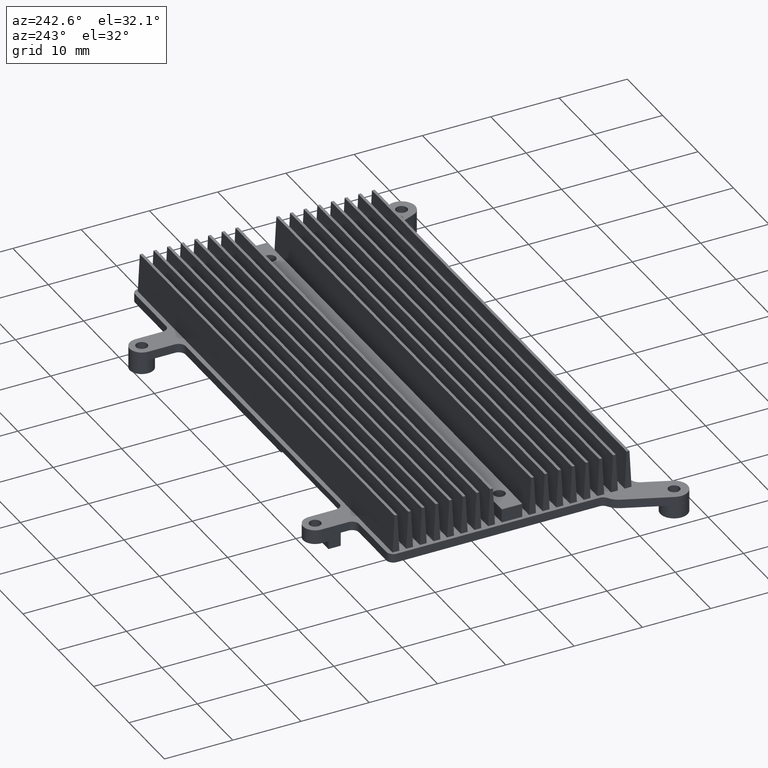
[diagram: clean part render]
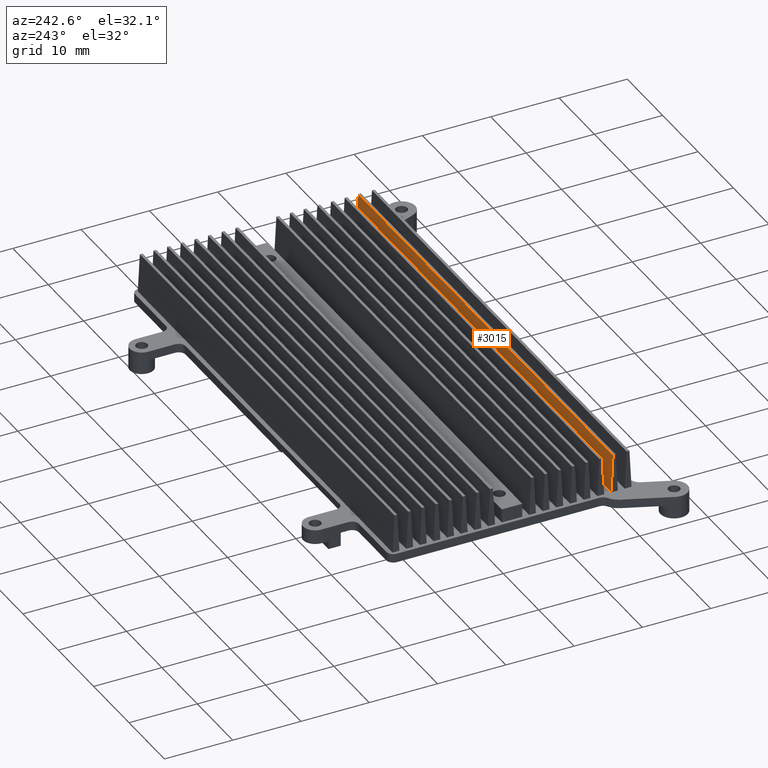
[diagram: same view with one face highlighted and labeled with its STEP entity id]
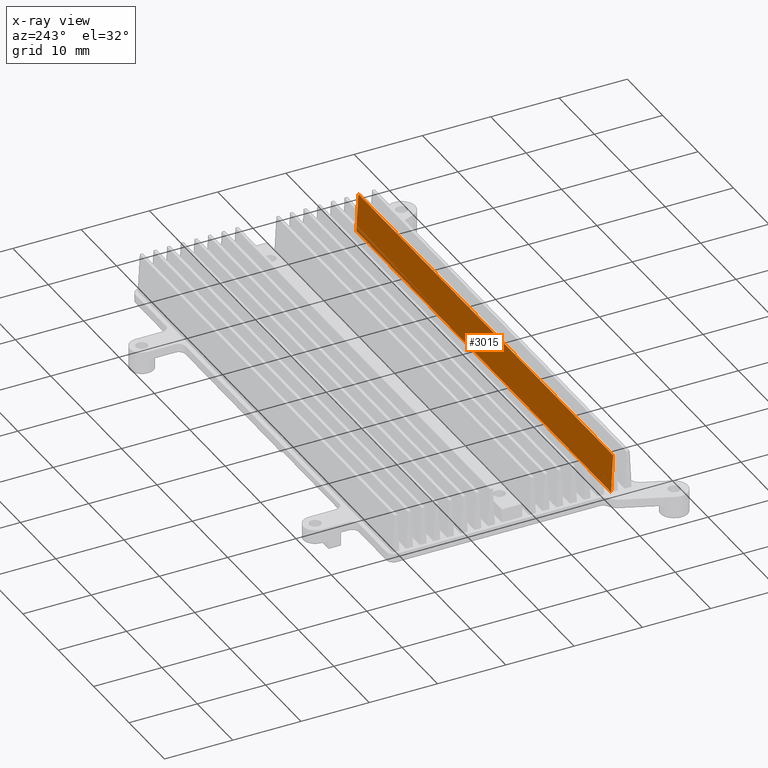
[diagram: x-ray of the same camera — body ghosted, the highlighted face saturated]
A machine part, auxiliary view. The second image highlights one B-rep face of the part: STEP entity #3015.
The next image is the same camera in x-ray: the body ghosted, the highlighted face saturated — about 4% of this face is hidden behind the body in this view.
In plain terms, the highlighted planar face has unit normal (0, -0.9986, -0.0535).
Its self-contained STEP definition (entity closure, byte-faithful):
#62 = EDGE_CURVE ( 'NONE', #501, #3656, #3113, .T. ) ;
#219 = CARTESIAN_POINT ( 'NONE',  ( 36.49940000000000140, -18.11228009753999757, -6.100000000000000533 ) ) ;
#356 = ORIENTED_EDGE ( 'NONE', *, *, #1851, .F. ) ;
#395 = CARTESIAN_POINT ( 'NONE',  ( 1.000599999999999934, -18.41228009753999828, -0.5000000000000000000 ) ) ;
#501 = VERTEX_POINT ( 'NONE', #902 ) ;
#644 = CARTESIAN_POINT ( 'NONE',  ( -35.49940000000000140, -18.11228009753999757, -6.100000000000000533 ) ) ;
#731 = VECTOR ( 'NONE', #4533, 1000.000000000000114 ) ;
#758 = VECTOR ( 'NONE', #4217, 1000.000000000000000 ) ;
#782 = DIRECTION ( 'NONE',  ( 0.0000000000000000000, -0.9985681322700890039, -0.05349472137160940499 ) ) ;
#881 = VECTOR ( 'NONE', #1355, 1000.000000000000000 ) ;
#902 = CARTESIAN_POINT ( 'NONE',  ( -35.49940000000000850, -18.11228009753999757, -6.100000000000000533 ) ) ;
#1030 = AXIS2_PLACEMENT_3D ( 'NONE', #3579, #782, #1150 ) ;
#1150 = DIRECTION ( 'NONE',  ( 0.0000000000000000000, 0.05349472137160939805, -0.9985681322700888929 ) ) ;
#1259 = FACE_OUTER_BOUND ( 'NONE', #2918, .T. ) ;
#1355 = DIRECTION ( 'NONE',  ( 1.000000000000000000, 0.0000000000000000000, 0.0000000000000000000 ) ) ;
#1440 = PLANE ( 'NONE',  #1030 ) ;
#1589 = CARTESIAN_POINT ( 'NONE',  ( 51.58500000000000085, -18.11228009753999757, -6.100000000000000533 ) ) ;
#1665 = VERTEX_POINT ( 'NONE', #3372 ) ;
#1695 = LINE ( 'NONE', #644, #731 ) ;
#1851 = EDGE_CURVE ( 'NONE', #3701, #1665, #3271, .T. ) ;
#1908 = VECTOR ( 'NONE', #4500, 1000.000000000000114 ) ;
#2025 = ORIENTED_EDGE ( 'NONE', *, *, #2877, .F. ) ;
#2545 = CARTESIAN_POINT ( 'NONE',  ( 36.49940000000000140, -18.11228009753999757, -6.100000000000000533 ) ) ;
#2877 = EDGE_CURVE ( 'NONE', #3656, #3701, #3938, .T. ) ;
#2918 = EDGE_LOOP ( 'NONE', ( #356, #2025, #2931, #4473 ) ) ;
#2931 = ORIENTED_EDGE ( 'NONE', *, *, #62, .F. ) ;
#3015 = ADVANCED_FACE ( 'NONE', ( #1259 ), #1440, .F. ) ;
#3113 = LINE ( 'NONE', #1589, #881 ) ;
#3271 = LINE ( 'NONE', #395, #758 ) ;
#3372 = CARTESIAN_POINT ( 'NONE',  ( -35.49940000000000140, -18.41228009753999828, -0.5000000000000000000 ) ) ;
#3505 = EDGE_CURVE ( 'NONE', #1665, #501, #1695, .T. ) ;
#3579 = CARTESIAN_POINT ( 'NONE',  ( 1.000599999999999934, -18.11228009753999757, -6.100000000000000533 ) ) ;
#3656 = VERTEX_POINT ( 'NONE', #2545 ) ;
#3701 = VERTEX_POINT ( 'NONE', #3928 ) ;
#3928 = CARTESIAN_POINT ( 'NONE',  ( 36.49940000000000140, -18.41228009753999828, -0.5000000000000000000 ) ) ;
#3938 = LINE ( 'NONE', #219, #1908 ) ;
#4217 = DIRECTION ( 'NONE',  ( -1.000000000000000000, 0.0000000000000000000, 0.0000000000000000000 ) ) ;
#4473 = ORIENTED_EDGE ( 'NONE', *, *, #3505, .F. ) ;
#4500 = DIRECTION ( 'NONE',  ( 0.0000000000000000000, -0.05349472137160939805, 0.9985681322700888929 ) ) ;
#4533 = DIRECTION ( 'NONE',  ( 0.0000000000000000000, 0.05349472137160939805, -0.9985681322700888929 ) ) ;